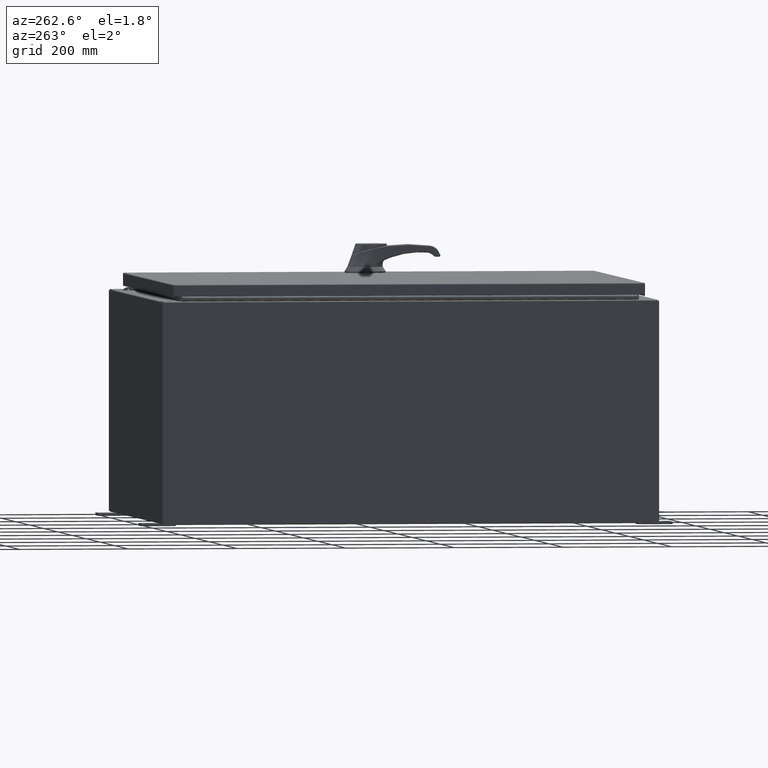
[diagram: clean part render]
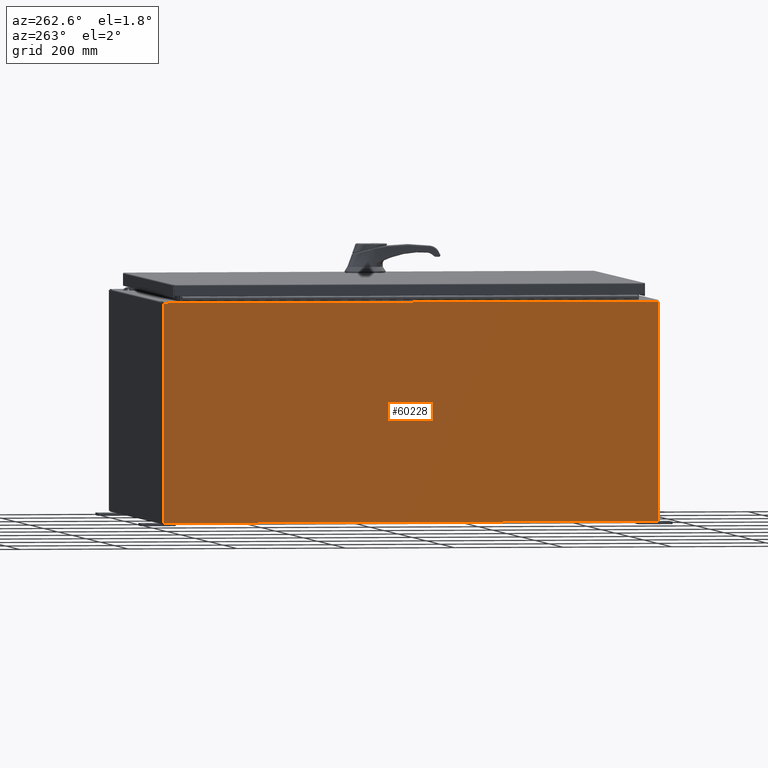
[diagram: same view with one face highlighted and labeled with its STEP entity id]
A machine part, auxiliary view. The second image highlights one B-rep face of the part: STEP entity #60228.
In plain terms, the highlighted planar face has unit normal (1, 0, 0).
Its self-contained STEP definition (entity closure, byte-faithful):
#1366 = VECTOR ( 'NONE', #47920, 39.37007874015748100 ) ;
#3383 = EDGE_CURVE ( 'NONE', #93992, #102811, #112045, .T. ) ;
#7956 = VECTOR ( 'NONE', #82121, 39.37007874015748100 ) ;
#9729 = ORIENTED_EDGE ( 'NONE', *, *, #76895, .T. ) ;
#12184 = VERTEX_POINT ( 'NONE', #115424 ) ;
#13187 = VECTOR ( 'NONE', #105181, 39.37007874015748100 ) ;
#18950 = FACE_OUTER_BOUND ( 'NONE', #113336, .T. ) ;
#20920 = CARTESIAN_POINT ( 'NONE',  ( -15.00000000000000400, 17.92530000000000000, 0.01299999999999984800 ) ) ;
#24842 = CARTESIAN_POINT ( 'NONE',  ( -15.00000000000005700, -17.92530000000000000, 15.83759999999998200 ) ) ;
#26272 = VERTEX_POINT ( 'NONE', #62903 ) ;
#26702 = DIRECTION ( 'NONE',  ( 3.430827668758847900E-015, 0.0000000000000000000, -1.000000000000000000 ) ) ;
#27125 = LINE ( 'NONE', #28788, #1366 ) ;
#28788 = CARTESIAN_POINT ( 'NONE',  ( -15.00000000000000400, 17.92530000000000000, -5.172322868739430800E-014 ) ) ;
#33165 = ORIENTED_EDGE ( 'NONE', *, *, #110054, .T. ) ;
#33541 = LINE ( 'NONE', #24842, #7956 ) ;
#33968 = CARTESIAN_POINT ( 'NONE',  ( -15.00000000000000400, -17.92530000000000000, -5.172322868739430800E-014 ) ) ;
#36915 = ORIENTED_EDGE ( 'NONE', *, *, #69353, .T. ) ;
#40225 = CARTESIAN_POINT ( 'NONE',  ( -15.00000000000000400, -17.92530000000000000, 0.01299999999999984700 ) ) ;
#47920 = DIRECTION ( 'NONE',  ( 3.430827668758847900E-015, 0.0000000000000000000, -1.000000000000000000 ) ) ;
#60228 = ADVANCED_FACE ( 'NONE', ( #18950 ), #102743, .F. ) ;
#62903 = CARTESIAN_POINT ( 'NONE',  ( -15.00000000000005700, 17.92530000000000000, 15.83759999999999500 ) ) ;
#64712 = CARTESIAN_POINT ( 'NONE',  ( -15.00000000000000400, 0.0000000000000000000, -5.172322868739430800E-014 ) ) ;
#69353 = EDGE_CURVE ( 'NONE', #12184, #26272, #33541, .T. ) ;
#76895 = EDGE_CURVE ( 'NONE', #93992, #12184, #95643, .T. ) ;
#77633 = CARTESIAN_POINT ( 'NONE',  ( -15.00000000000000400, 17.92530000000000000, 0.01299999999999984700 ) ) ;
#82121 = DIRECTION ( 'NONE',  ( 0.0000000000000000000, 1.000000000000000000, 0.0000000000000000000 ) ) ;
#84005 = DIRECTION ( 'NONE',  ( 1.000000000000000000, 0.0000000000000000000, 3.430827668758847900E-015 ) ) ;
#84777 = AXIS2_PLACEMENT_3D ( 'NONE', #64712, #84005, #26702 ) ;
#91289 = DIRECTION ( 'NONE',  ( -3.430827668758847900E-015, 0.0000000000000000000, 1.000000000000000000 ) ) ;
#92701 = VECTOR ( 'NONE', #91289, 39.37007874015748100 ) ;
#93928 = ORIENTED_EDGE ( 'NONE', *, *, #3383, .F. ) ;
#93992 = VERTEX_POINT ( 'NONE', #40225 ) ;
#95643 = LINE ( 'NONE', #33968, #92701 ) ;
#102743 = PLANE ( 'NONE',  #84777 ) ;
#102811 = VERTEX_POINT ( 'NONE', #20920 ) ;
#105181 = DIRECTION ( 'NONE',  ( -0.0000000000000000000, 1.000000000000000000, -0.0000000000000000000 ) ) ;
#110054 = EDGE_CURVE ( 'NONE', #26272, #102811, #27125, .T. ) ;
#112045 = LINE ( 'NONE', #77633, #13187 ) ;
#113336 = EDGE_LOOP ( 'NONE', ( #36915, #33165, #93928, #9729 ) ) ;
#115424 = CARTESIAN_POINT ( 'NONE',  ( -15.00000000000005700, -17.92530000000000000, 15.83759999999998200 ) ) ;